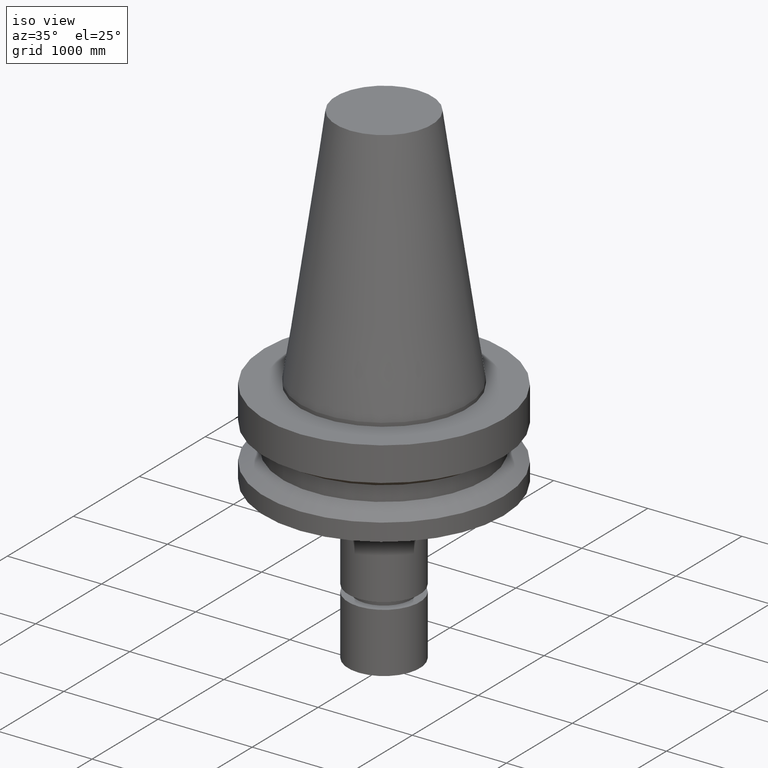
[diagram: clean part render]
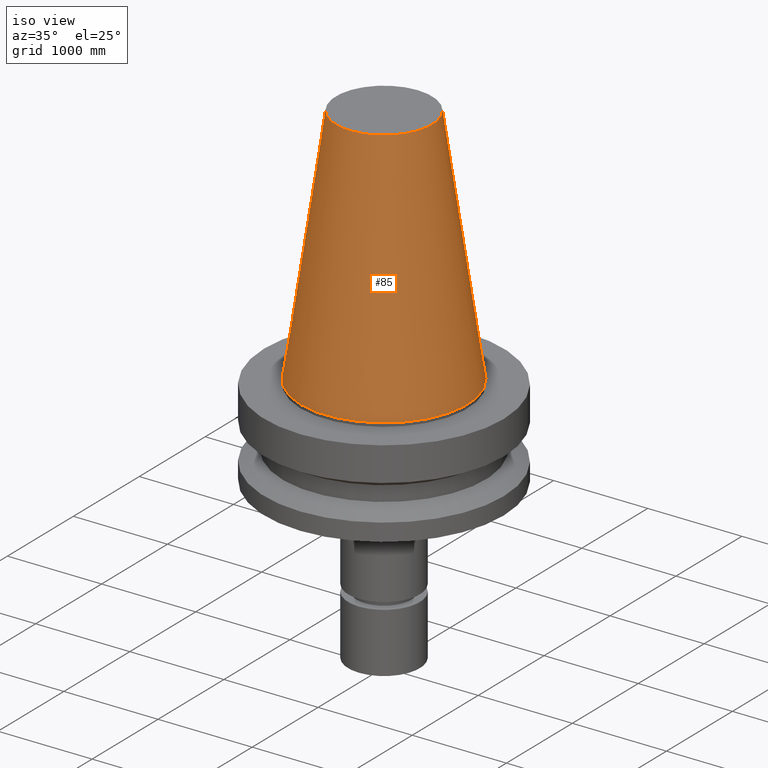
[diagram: same view with one face highlighted and labeled with its STEP entity id]
A machine part, iso view. The second image highlights one B-rep face of the part: STEP entity #85.
In plain terms, the highlighted conical surface has half-angle 8.297 deg.
Its self-contained STEP definition (entity closure, byte-faithful):
#85=ADVANCED_FACE('Unnamed[1]',(#216,#217),#218,.T.);
#99=EDGE_CURVE('Unnamed[1]',#239,#239,#240,.T.);
#153=EDGE_CURVE('Unnamed[1]',#322,#322,#323,.T.);
#216=FACE_BOUND('',#395,.T.);
#217=FACE_BOUND('',#396,.T.);
#218=CONICAL_SURFACE('',#397,27.5020833325942,0.144812498253157);
#239=VERTEX_POINT('',#424);
#240=CIRCLE('',#425,20.0791666651884);
#322=VERTEX_POINT('',#527);
#323=CIRCLE('',#528,34.925);
#395=EDGE_LOOP('',(#598));
#396=EDGE_LOOP('',(#599));
#397=AXIS2_PLACEMENT_3D('',#600,#601,#602);
#424=CARTESIAN_POINT('',(-6.23345220766003E-015,20.0791666651884,101.8));
#425=AXIS2_PLACEMENT_3D('',#624,#625,#626);
#527=CARTESIAN_POINT('',(-4.30483861169435E-031,34.925,4.27707894602213E-015));
#528=AXIS2_PLACEMENT_3D('',#716,#717,#718);
#598=ORIENTED_EDGE('',*,*,#99,.F.);
#599=ORIENTED_EDGE('',*,*,#153,.T.);
#600=CARTESIAN_POINT('',(-3.11672610383001E-015,1.30033294015354E-014,50.9));
#601=DIRECTION('',(6.12323399573677E-017,-1.40684069939016E-019,-1.0));
#602=DIRECTION('',(-4.81853831597193E-033,1.0,-1.40684069939015E-019));
#624=CARTESIAN_POINT('',(-6.23345220766003E-015,1.30104902206953E-014,101.8));
#625=DIRECTION('',(-6.12323399573677E-017,1.40684069939014E-019,1.0));
#626=DIRECTION('',(-4.81853831597193E-033,1.0,-1.40684069939014E-019));
#716=CARTESIAN_POINT('',(-1.6019014550465E-046,1.29961685823755E-014,1.59157162555855E-030));
#717=DIRECTION('',(-6.12323399573677E-017,1.40684069939028E-019,1.0));
#718=DIRECTION('',(-4.81853831597193E-033,1.0,-1.40684069939028E-019));